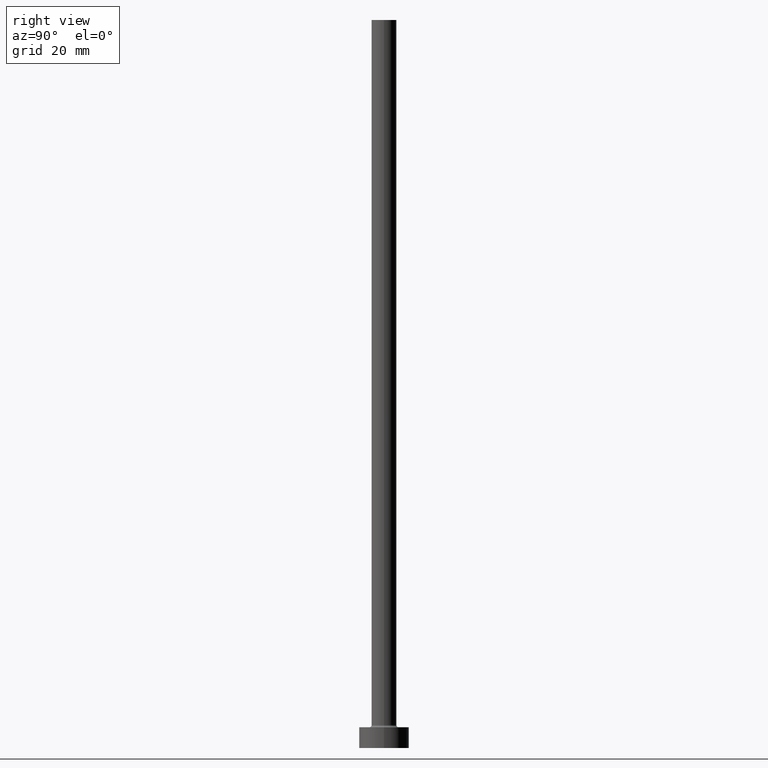
[diagram: clean part render]
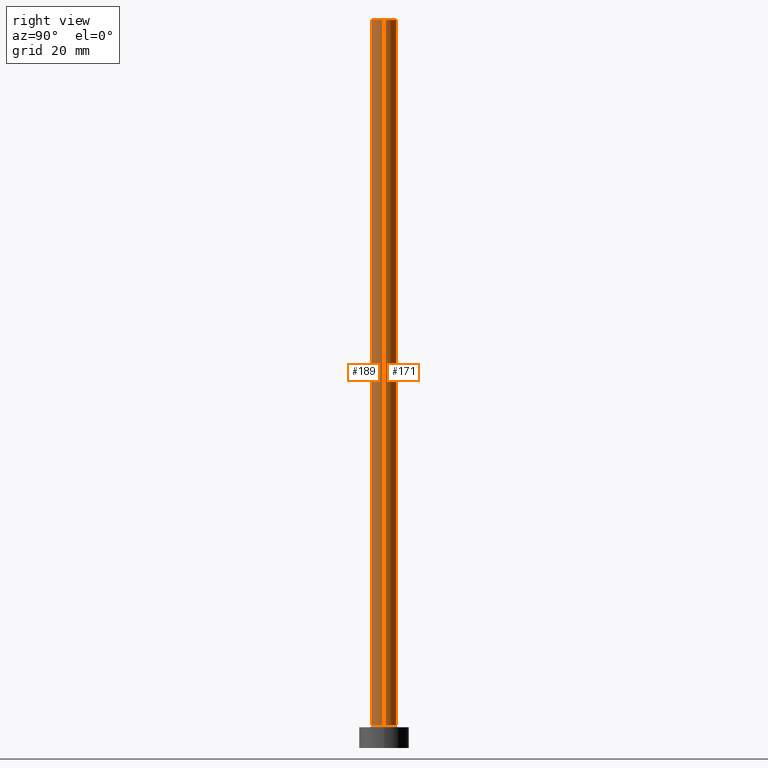
[diagram: same view with one multi-face feature highlighted, each face labeled with its STEP entity id]
A machine part, right view. The highlighted faces form ONE feature: a constant-radius fillet chain: 2 tangent blend faces with common blend radius 3 mm. The faces share edges in the B-rep.
Their STEP definitions:
[1] entity #171 (Cylinder):
#3 = AXIS2_PLACEMENT_3D ( 'NONE', #165, #229, #452 ) ;
#7 = CARTESIAN_POINT ( 'NONE',  ( -3.000000000000000444, 0.000000000000000000, 5.500000000000005329 ) ) ;
#26 = VECTOR ( 'NONE', #422, 1000.000000000000000 ) ;
#52 = VERTEX_POINT ( 'NONE', #300 ) ;
#56 = DIRECTION ( 'NONE',  ( 0.000000000000000000, 0.000000000000000000, 1.000000000000000000 ) ) ;
#97 = VECTOR ( 'NONE', #460, 1000.000000000000000 ) ;
#98 = EDGE_CURVE ( 'NONE', #441, #123, #271, .T. ) ;
#123 = VERTEX_POINT ( 'NONE', #280 ) ;
#126 = EDGE_CURVE ( 'NONE', #52, #201, #396, .T. ) ;
#135 = AXIS2_PLACEMENT_3D ( 'NONE', #267, #56, #297 ) ;
#138 = CARTESIAN_POINT ( 'NONE',  ( 0.000000000000000000, 0.000000000000000000, 175.0000000000000284 ) ) ;
#165 = CARTESIAN_POINT ( 'NONE',  ( 0.000000000000000000, 0.000000000000000000, 5.500000000000005329 ) ) ;
#171 = ADVANCED_FACE ( 'NONE', ( #318 ), #388, .T. ) ;
#176 = CIRCLE ( 'NONE', #3, 3.000000000000000444 ) ;
#186 = ORIENTED_EDGE ( 'NONE', *, *, #98, .T. ) ;
#201 = VERTEX_POINT ( 'NONE', #7 ) ;
#229 = DIRECTION ( 'NONE',  ( 0.000000000000000000, 0.000000000000000000, 1.000000000000000000 ) ) ;
#230 = AXIS2_PLACEMENT_3D ( 'NONE', #138, #346, #279 ) ;
#252 = CIRCLE ( 'NONE', #135, 3.000000000000000444 ) ;
#262 = ORIENTED_EDGE ( 'NONE', *, *, #370, .F. ) ;
#267 = CARTESIAN_POINT ( 'NONE',  ( 0.000000000000000000, 0.000000000000000000, 175.0000000000000284 ) ) ;
#271 = LINE ( 'NONE', #450, #26 ) ;
#279 = DIRECTION ( 'NONE',  ( -1.000000000000000000, 0.000000000000000000, 0.000000000000000000 ) ) ;
#280 = CARTESIAN_POINT ( 'NONE',  ( 3.000000000000000444, 3.673940397442060361E-16, 5.500000000000005329 ) ) ;
#297 = DIRECTION ( 'NONE',  ( 1.000000000000000000, 0.000000000000000000, 0.000000000000000000 ) ) ;
#300 = CARTESIAN_POINT ( 'NONE',  ( -3.000000000000000444, 0.000000000000000000, 175.0000000000000284 ) ) ;
#314 = ORIENTED_EDGE ( 'NONE', *, *, #338, .T. ) ;
#318 = FACE_OUTER_BOUND ( 'NONE', #426, .T. ) ;
#338 = EDGE_CURVE ( 'NONE', #123, #201, #176, .T. ) ;
#346 = DIRECTION ( 'NONE',  ( -0.000000000000000000, -0.000000000000000000, -1.000000000000000000 ) ) ;
#352 = CARTESIAN_POINT ( 'NONE',  ( 3.000000000000000444, 3.673940397442060361E-16, 175.0000000000000284 ) ) ;
#370 = EDGE_CURVE ( 'NONE', #441, #52, #252, .T. ) ;
#388 = CYLINDRICAL_SURFACE ( 'NONE', #230, 3.000000000000000444 ) ;
#396 = LINE ( 'NONE', #429, #97 ) ;
#422 = DIRECTION ( 'NONE',  ( -0.000000000000000000, -0.000000000000000000, -1.000000000000000000 ) ) ;
#423 = ORIENTED_EDGE ( 'NONE', *, *, #126, .F. ) ;
#426 = EDGE_LOOP ( 'NONE', ( #262, #186, #314, #423 ) ) ;
#429 = CARTESIAN_POINT ( 'NONE',  ( -3.000000000000000444, 0.000000000000000000, 175.0000000000000284 ) ) ;
#441 = VERTEX_POINT ( 'NONE', #352 ) ;
#450 = CARTESIAN_POINT ( 'NONE',  ( 3.000000000000000444, 3.673940397442060361E-16, 175.0000000000000284 ) ) ;
#452 = DIRECTION ( 'NONE',  ( 1.000000000000000000, 0.000000000000000000, 0.000000000000000000 ) ) ;
#460 = DIRECTION ( 'NONE',  ( -0.000000000000000000, -0.000000000000000000, -1.000000000000000000 ) ) ;
[2] entity #189 (Cylinder):
#2 = AXIS2_PLACEMENT_3D ( 'NONE', #151, #404, #79 ) ;
#7 = CARTESIAN_POINT ( 'NONE',  ( -3.000000000000000444, 0.000000000000000000, 5.500000000000005329 ) ) ;
#12 = DIRECTION ( 'NONE',  ( -0.000000000000000000, -0.000000000000000000, -1.000000000000000000 ) ) ;
#25 = AXIS2_PLACEMENT_3D ( 'NONE', #408, #12, #251 ) ;
#26 = VECTOR ( 'NONE', #422, 1000.000000000000000 ) ;
#52 = VERTEX_POINT ( 'NONE', #300 ) ;
#65 = DIRECTION ( 'NONE',  ( 1.000000000000000000, 0.000000000000000000, 0.000000000000000000 ) ) ;
#79 = DIRECTION ( 'NONE',  ( 1.000000000000000000, 0.000000000000000000, 0.000000000000000000 ) ) ;
#81 = CIRCLE ( 'NONE', #2, 3.000000000000000444 ) ;
#97 = VECTOR ( 'NONE', #460, 1000.000000000000000 ) ;
#98 = EDGE_CURVE ( 'NONE', #441, #123, #271, .T. ) ;
#104 = FACE_OUTER_BOUND ( 'NONE', #377, .T. ) ;
#123 = VERTEX_POINT ( 'NONE', #280 ) ;
#126 = EDGE_CURVE ( 'NONE', #52, #201, #396, .T. ) ;
#140 = DIRECTION ( 'NONE',  ( 0.000000000000000000, 0.000000000000000000, 1.000000000000000000 ) ) ;
#151 = CARTESIAN_POINT ( 'NONE',  ( 0.000000000000000000, 0.000000000000000000, 5.500000000000005329 ) ) ;
#189 = ADVANCED_FACE ( 'NONE', ( #104 ), #424, .T. ) ;
#201 = VERTEX_POINT ( 'NONE', #7 ) ;
#209 = EDGE_CURVE ( 'NONE', #201, #123, #81, .T. ) ;
#251 = DIRECTION ( 'NONE',  ( -1.000000000000000000, 0.000000000000000000, 0.000000000000000000 ) ) ;
#271 = LINE ( 'NONE', #450, #26 ) ;
#280 = CARTESIAN_POINT ( 'NONE',  ( 3.000000000000000444, 3.673940397442060361E-16, 5.500000000000005329 ) ) ;
#287 = ORIENTED_EDGE ( 'NONE', *, *, #209, .T. ) ;
#290 = ORIENTED_EDGE ( 'NONE', *, *, #126, .T. ) ;
#300 = CARTESIAN_POINT ( 'NONE',  ( -3.000000000000000444, 0.000000000000000000, 175.0000000000000284 ) ) ;
#349 = CIRCLE ( 'NONE', #394, 3.000000000000000444 ) ;
#351 = CARTESIAN_POINT ( 'NONE',  ( 0.000000000000000000, 0.000000000000000000, 175.0000000000000284 ) ) ;
#352 = CARTESIAN_POINT ( 'NONE',  ( 3.000000000000000444, 3.673940397442060361E-16, 175.0000000000000284 ) ) ;
#360 = ORIENTED_EDGE ( 'NONE', *, *, #454, .F. ) ;
#377 = EDGE_LOOP ( 'NONE', ( #437, #360, #290, #287 ) ) ;
#394 = AXIS2_PLACEMENT_3D ( 'NONE', #351, #140, #65 ) ;
#396 = LINE ( 'NONE', #429, #97 ) ;
#404 = DIRECTION ( 'NONE',  ( 0.000000000000000000, 0.000000000000000000, 1.000000000000000000 ) ) ;
#408 = CARTESIAN_POINT ( 'NONE',  ( 0.000000000000000000, 0.000000000000000000, 175.0000000000000284 ) ) ;
#422 = DIRECTION ( 'NONE',  ( -0.000000000000000000, -0.000000000000000000, -1.000000000000000000 ) ) ;
#424 = CYLINDRICAL_SURFACE ( 'NONE', #25, 3.000000000000000444 ) ;
#429 = CARTESIAN_POINT ( 'NONE',  ( -3.000000000000000444, 0.000000000000000000, 175.0000000000000284 ) ) ;
#437 = ORIENTED_EDGE ( 'NONE', *, *, #98, .F. ) ;
#441 = VERTEX_POINT ( 'NONE', #352 ) ;
#450 = CARTESIAN_POINT ( 'NONE',  ( 3.000000000000000444, 3.673940397442060361E-16, 175.0000000000000284 ) ) ;
#454 = EDGE_CURVE ( 'NONE', #52, #441, #349, .T. ) ;
#460 = DIRECTION ( 'NONE',  ( -0.000000000000000000, -0.000000000000000000, -1.000000000000000000 ) ) ;